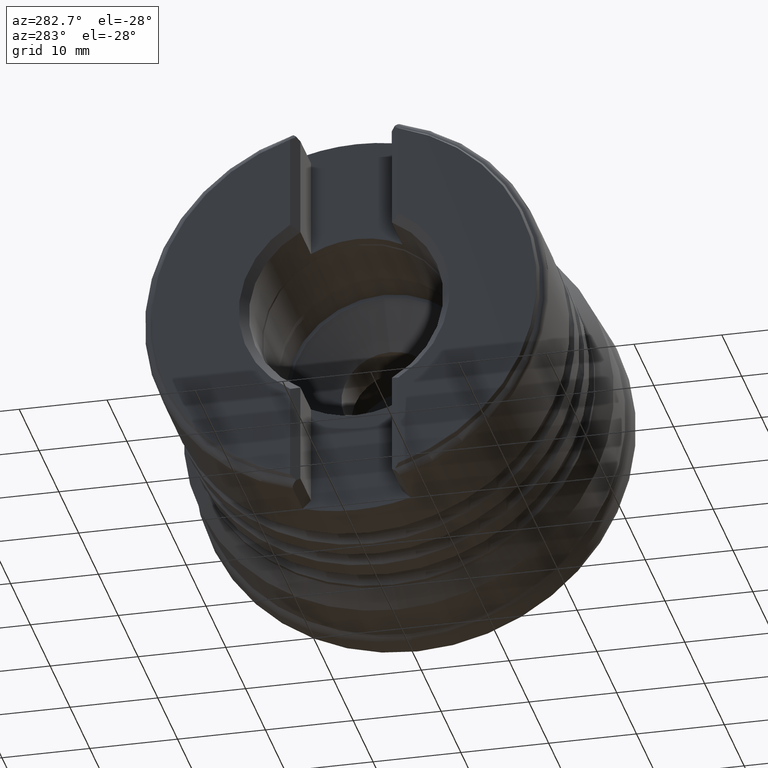
[diagram: clean part render]
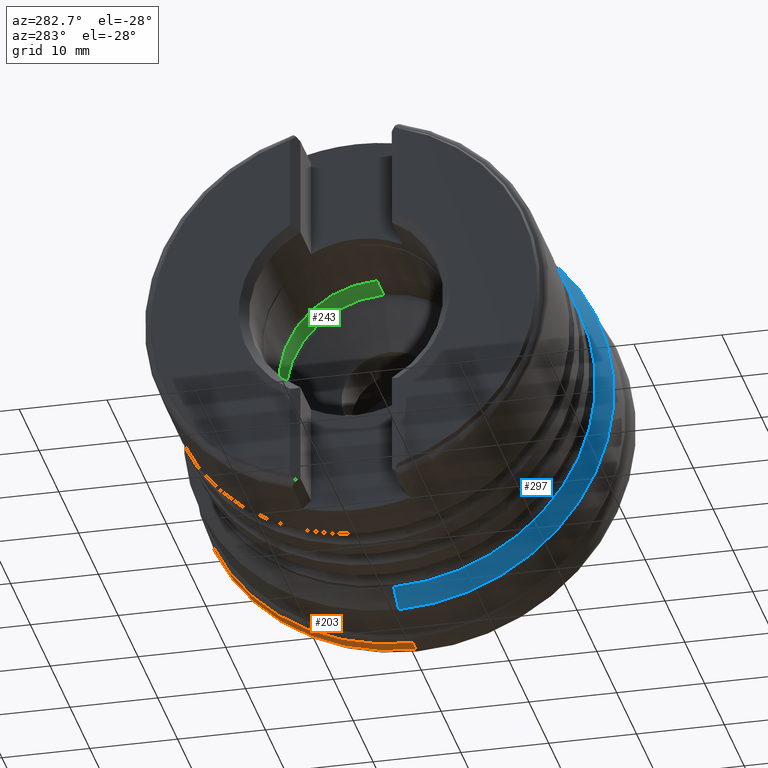
[diagram: same view with three faces highlighted in distinct colors, each labeled with its STEP entity id]
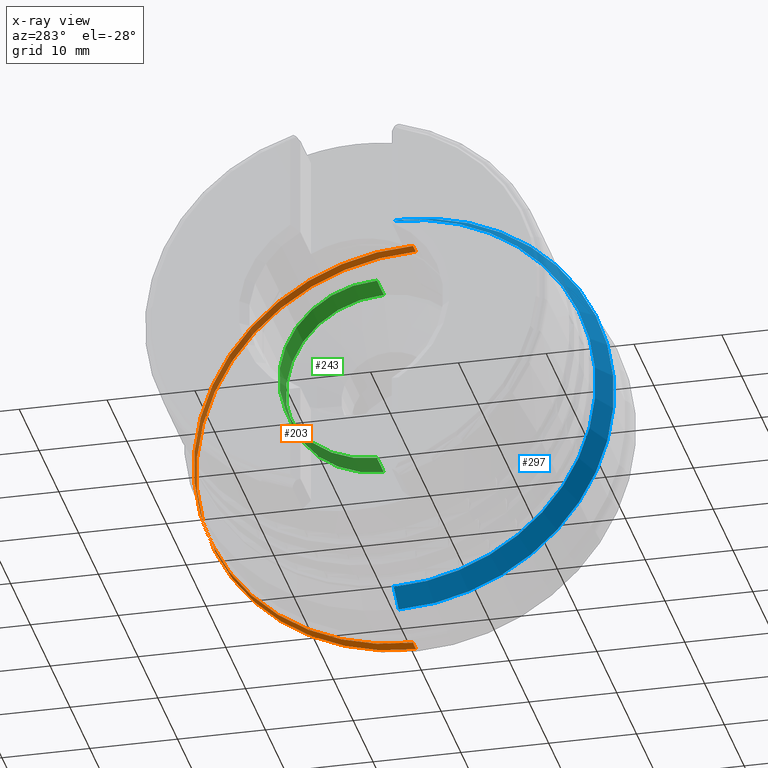
[diagram: x-ray of the same camera — body ghosted, the three highlighted faces saturated]
A machine part, auxiliary view with three faces highlighted in distinct colors.
The next image is the same camera in x-ray (body ghosted, the three faces saturated) — at least one of them is partly hidden behind the body in this view.
Their STEP definitions:

[orange] entity #203 — the highlighted conical surface has half-angle 1.729 deg.
#166 = AXIS2_PLACEMENT_3D ( 'NONE', #2494, #2468, #2440 ) ;
#203 = ADVANCED_FACE ( 'NONE', ( #1106 ), #1299, .T. ) ;
#340 = AXIS2_PLACEMENT_3D ( 'NONE', #923, #926, #927 ) ;
#349 = AXIS2_PLACEMENT_3D ( 'NONE', #958, #965, #966 ) ;
#438 = CARTESIAN_POINT ( 'NONE',  ( -2.718381073126991100, 0.0000000000000000000, -24.99600429477203900 ) ) ;
#462 = CARTESIAN_POINT ( 'NONE',  ( -4.209209712595049200, 3.055617536107554200E-015, 24.95101067699677700 ) ) ;
#758 = CARTESIAN_POINT ( 'NONE',  ( -2.718381073126991100, 3.061127665106607200E-015, 24.99600429477203900 ) ) ;
#875 = CARTESIAN_POINT ( 'NONE',  ( -2.718381073126991100, 0.0000000000000000000, -24.99600429477203900 ) ) ;
#876 = DIRECTION ( 'NONE',  ( 0.9995448863926641400, 0.0000000000000000000, -0.03016653918294425600 ) ) ;
#921 = CARTESIAN_POINT ( 'NONE',  ( -2.718381073126991100, 3.061127665106607200E-015, 24.99600429477203900 ) ) ;
#922 = DIRECTION ( 'NONE',  ( 0.9995448863926641400, 3.694335565174589500E-018, 0.03016653918294425600 ) ) ;
#923 = CARTESIAN_POINT ( 'NONE',  ( -4.209209712595049200, 0.0000000000000000000, 0.0000000000000000000 ) ) ;
#926 = DIRECTION ( 'NONE',  ( 1.000000000000000000, -0.0000000000000000000, -0.0000000000000000000 ) ) ;
#927 = DIRECTION ( 'NONE',  ( 0.0000000000000000000, 0.0000000000000000000, -1.000000000000000000 ) ) ;
#958 = CARTESIAN_POINT ( 'NONE',  ( -2.718381073126991100, 0.0000000000000000000, 0.0000000000000000000 ) ) ;
#965 = DIRECTION ( 'NONE',  ( 1.000000000000000000, -0.0000000000000000000, -0.0000000000000000000 ) ) ;
#966 = DIRECTION ( 'NONE',  ( 0.0000000000000000000, 0.0000000000000000000, -1.000000000000000000 ) ) ;
#983 = CARTESIAN_POINT ( 'NONE',  ( -4.209209712595049200, 0.0000000000000000000, -24.95101067699677700 ) ) ;
#1106 = FACE_OUTER_BOUND ( 'NONE', #1203, .T. ) ;
#1203 = EDGE_LOOP ( 'NONE', ( #1449, #1492, #1584, #1424 ) ) ;
#1299 = CONICAL_SURFACE ( 'NONE', #166, 24.99600429477203900, 0.03017111641704249900 ) ;
#1424 = ORIENTED_EDGE ( 'NONE', *, *, #2328, .F. ) ;
#1449 = ORIENTED_EDGE ( 'NONE', *, *, #2344, .T. ) ;
#1492 = ORIENTED_EDGE ( 'NONE', *, *, #2343, .T. ) ;
#1584 = ORIENTED_EDGE ( 'NONE', *, *, #2356, .F. ) ;
#1787 = VERTEX_POINT ( 'NONE', #462 ) ;
#1960 = VERTEX_POINT ( 'NONE', #438 ) ;
#2062 = VERTEX_POINT ( 'NONE', #758 ) ;
#2124 = LINE ( 'NONE', #921, #2200 ) ;
#2175 = LINE ( 'NONE', #875, #2232 ) ;
#2183 = CIRCLE ( 'NONE', #349, 24.99600429477203900 ) ;
#2200 = VECTOR ( 'NONE', #922, 1000.000000000000000 ) ;
#2232 = VECTOR ( 'NONE', #876, 1000.000000000000000 ) ;
#2274 = CIRCLE ( 'NONE', #340, 24.95101067699677700 ) ;
#2328 = EDGE_CURVE ( 'NONE', #2522, #1960, #2175, .T. ) ;
#2343 = EDGE_CURVE ( 'NONE', #1787, #2062, #2124, .T. ) ;
#2344 = EDGE_CURVE ( 'NONE', #2522, #1787, #2274, .T. ) ;
#2356 = EDGE_CURVE ( 'NONE', #1960, #2062, #2183, .T. ) ;
#2440 = DIRECTION ( 'NONE',  ( 0.0000000000000000000, 0.0000000000000000000, -1.000000000000000000 ) ) ;
#2468 = DIRECTION ( 'NONE',  ( 1.000000000000000000, -0.0000000000000000000, -0.0000000000000000000 ) ) ;
#2494 = CARTESIAN_POINT ( 'NONE',  ( -2.718381073126991100, 0.0000000000000000000, 0.0000000000000000000 ) ) ;
#2522 = VERTEX_POINT ( 'NONE', #983 ) ;

[blue] entity #297 — the highlighted conical surface has half-angle 30 deg.
#55 = EDGE_CURVE ( 'NONE', #1790, #1786, #1370, .T. ) ;
#73 = EDGE_CURVE ( 'NONE', #1786, #2521, #1386, .T. ) ;
#118 = AXIS2_PLACEMENT_3D ( 'NONE', #1854, #1897, #1862 ) ;
#208 = AXIS2_PLACEMENT_3D ( 'NONE', #378, #2577, #2572 ) ;
#297 = ADVANCED_FACE ( 'NONE', ( #1167 ), #1335, .T. ) ;
#304 = AXIS2_PLACEMENT_3D ( 'NONE', #775, #785, #786 ) ;
#378 = CARTESIAN_POINT ( 'NONE',  ( -11.37000000000000100, 0.0000000000000000000, 0.0000000000000000000 ) ) ;
#398 = VERTEX_POINT ( 'NONE', #482 ) ;
#450 = CARTESIAN_POINT ( 'NONE',  ( -11.37000000000000100, 3.000384657911015500E-015, 24.50000000000000000 ) ) ;
#482 = CARTESIAN_POINT ( 'NONE',  ( -13.96807621135331700, 0.0000000000000000000, -22.99999999999999600 ) ) ;
#520 = CARTESIAN_POINT ( 'NONE',  ( -13.96807621135331700, 2.908536147974963700E-015, 22.99999999999999600 ) ) ;
#775 = CARTESIAN_POINT ( 'NONE',  ( -13.96807621135331700, 0.0000000000000000000, 0.0000000000000000000 ) ) ;
#785 = DIRECTION ( 'NONE',  ( 1.000000000000000000, -0.0000000000000000000, -0.0000000000000000000 ) ) ;
#786 = DIRECTION ( 'NONE',  ( 0.0000000000000000000, 0.0000000000000000000, -1.000000000000000000 ) ) ;
#956 = CARTESIAN_POINT ( 'NONE',  ( -11.37000000000000100, 0.0000000000000000000, -24.50000000000000000 ) ) ;
#957 = DIRECTION ( 'NONE',  ( 0.8660254037844379300, 0.0000000000000000000, -0.5000000000000014400 ) ) ;
#982 = CARTESIAN_POINT ( 'NONE',  ( -11.37000000000000100, 0.0000000000000000000, -24.50000000000000000 ) ) ;
#1167 = FACE_OUTER_BOUND ( 'NONE', #1653, .T. ) ;
#1335 = CONICAL_SURFACE ( 'NONE', #208, 24.50000000000000000, 0.5235987755983005900 ) ;
#1370 = LINE ( 'NONE', #1794, #1419 ) ;
#1386 = CIRCLE ( 'NONE', #118, 24.50000000000000000 ) ;
#1395 = ORIENTED_EDGE ( 'NONE', *, *, #2353, .T. ) ;
#1419 = VECTOR ( 'NONE', #1793, 999.9999999999998900 ) ;
#1447 = ORIENTED_EDGE ( 'NONE', *, *, #73, .F. ) ;
#1536 = ORIENTED_EDGE ( 'NONE', *, *, #55, .F. ) ;
#1653 = EDGE_LOOP ( 'NONE', ( #1536, #1665, #1395, #1447 ) ) ;
#1665 = ORIENTED_EDGE ( 'NONE', *, *, #2068, .T. ) ;
#1786 = VERTEX_POINT ( 'NONE', #450 ) ;
#1790 = VERTEX_POINT ( 'NONE', #520 ) ;
#1793 = DIRECTION ( 'NONE',  ( 0.8660254037844379300, 6.123233995736784500E-017, 0.5000000000000014400 ) ) ;
#1794 = CARTESIAN_POINT ( 'NONE',  ( -11.37000000000000100, 3.000384657911015500E-015, 24.50000000000000000 ) ) ;
#1854 = CARTESIAN_POINT ( 'NONE',  ( -11.37000000000000100, 0.0000000000000000000, 0.0000000000000000000 ) ) ;
#1862 = DIRECTION ( 'NONE',  ( 0.0000000000000000000, 0.0000000000000000000, -1.000000000000000000 ) ) ;
#1897 = DIRECTION ( 'NONE',  ( 1.000000000000000000, -0.0000000000000000000, -0.0000000000000000000 ) ) ;
#2068 = EDGE_CURVE ( 'NONE', #1790, #398, #2289, .T. ) ;
#2196 = VECTOR ( 'NONE', #957, 999.9999999999998900 ) ;
#2289 = CIRCLE ( 'NONE', #304, 22.99999999999999600 ) ;
#2307 = LINE ( 'NONE', #956, #2196 ) ;
#2353 = EDGE_CURVE ( 'NONE', #398, #2521, #2307, .T. ) ;
#2521 = VERTEX_POINT ( 'NONE', #982 ) ;
#2572 = DIRECTION ( 'NONE',  ( 0.0000000000000000000, 0.0000000000000000000, -1.000000000000000000 ) ) ;
#2577 = DIRECTION ( 'NONE',  ( 1.000000000000000000, -0.0000000000000000000, -0.0000000000000000000 ) ) ;

[green] entity #243 — the highlighted cylindrical surface (partial cylindrical patch) has radius 11.15 mm, axis along (1, -0, -0).
#6 = CARTESIAN_POINT ( 'NONE',  ( -18.94999999999999900, 0.0000000000000000000, 0.0000000000000000000 ) ) ;
#41 = EDGE_CURVE ( 'NONE', #2539, #1934, #1266, .T. ) ;
#70 = EDGE_CURVE ( 'NONE', #399, #2539, #1680, .T. ) ;
#114 = AXIS2_PLACEMENT_3D ( 'NONE', #1796, #1844, #1824 ) ;
#182 = AXIS2_PLACEMENT_3D ( 'NONE', #2495, #2366, #2508 ) ;
#240 = AXIS2_PLACEMENT_3D ( 'NONE', #6, #582, #583 ) ;
#243 = ADVANCED_FACE ( 'NONE', ( #1283 ), #1593, .F. ) ;
#399 = VERTEX_POINT ( 'NONE', #498 ) ;
#434 = CARTESIAN_POINT ( 'NONE',  ( 0.0000000000000000000, 0.0000000000000000000, -11.14999999999999700 ) ) ;
#498 = CARTESIAN_POINT ( 'NONE',  ( -22.39904181246355800, 0.0000000000000000000, -11.14999999999999700 ) ) ;
#528 = CARTESIAN_POINT ( 'NONE',  ( -18.94999999999999900, 1.365481181049298400E-015, 11.14999999999999700 ) ) ;
#582 = DIRECTION ( 'NONE',  ( 1.000000000000000000, -0.0000000000000000000, -0.0000000000000000000 ) ) ;
#583 = DIRECTION ( 'NONE',  ( 0.0000000000000000000, 0.0000000000000000000, -1.000000000000000000 ) ) ;
#905 = DIRECTION ( 'NONE',  ( 1.000000000000000000, -0.0000000000000000000, -0.0000000000000000000 ) ) ;
#987 = CARTESIAN_POINT ( 'NONE',  ( -18.94999999999999900, 0.0000000000000000000, -11.14999999999999700 ) ) ;
#1001 = CARTESIAN_POINT ( 'NONE',  ( -22.39904181246355800, 1.365481181049298400E-015, 11.14999999999999700 ) ) ;
#1072 = ORIENTED_EDGE ( 'NONE', *, *, #70, .F. ) ;
#1143 = EDGE_LOOP ( 'NONE', ( #1601, #1072, #1723, #1494 ) ) ;
#1240 = VECTOR ( 'NONE', #1808, 1000.000000000000000 ) ;
#1266 = LINE ( 'NONE', #1815, #1240 ) ;
#1283 = FACE_OUTER_BOUND ( 'NONE', #1143, .T. ) ;
#1494 = ORIENTED_EDGE ( 'NONE', *, *, #2002, .T. ) ;
#1593 = CYLINDRICAL_SURFACE ( 'NONE', #182, 11.14999999999999700 ) ;
#1601 = ORIENTED_EDGE ( 'NONE', *, *, #41, .F. ) ;
#1680 = CIRCLE ( 'NONE', #114, 11.14999999999999700 ) ;
#1723 = ORIENTED_EDGE ( 'NONE', *, *, #1991, .T. ) ;
#1796 = CARTESIAN_POINT ( 'NONE',  ( -22.39904181246355800, 0.0000000000000000000, 0.0000000000000000000 ) ) ;
#1808 = DIRECTION ( 'NONE',  ( 1.000000000000000000, -0.0000000000000000000, -0.0000000000000000000 ) ) ;
#1815 = CARTESIAN_POINT ( 'NONE',  ( 0.0000000000000000000, 1.365481181049298400E-015, 11.14999999999999700 ) ) ;
#1824 = DIRECTION ( 'NONE',  ( 0.0000000000000000000, 0.0000000000000000000, -1.000000000000000000 ) ) ;
#1844 = DIRECTION ( 'NONE',  ( 1.000000000000000000, -0.0000000000000000000, -0.0000000000000000000 ) ) ;
#1934 = VERTEX_POINT ( 'NONE', #528 ) ;
#1991 = EDGE_CURVE ( 'NONE', #399, #2524, #2105, .T. ) ;
#2002 = EDGE_CURVE ( 'NONE', #2524, #1934, #2306, .T. ) ;
#2105 = LINE ( 'NONE', #434, #2199 ) ;
#2199 = VECTOR ( 'NONE', #905, 1000.000000000000000 ) ;
#2306 = CIRCLE ( 'NONE', #240, 11.14999999999999700 ) ;
#2366 = DIRECTION ( 'NONE',  ( 1.000000000000000000, -0.0000000000000000000, -0.0000000000000000000 ) ) ;
#2495 = CARTESIAN_POINT ( 'NONE',  ( 0.0000000000000000000, 0.0000000000000000000, 0.0000000000000000000 ) ) ;
#2508 = DIRECTION ( 'NONE',  ( 0.0000000000000000000, 0.0000000000000000000, -1.000000000000000000 ) ) ;
#2524 = VERTEX_POINT ( 'NONE', #987 ) ;
#2539 = VERTEX_POINT ( 'NONE', #1001 ) ;